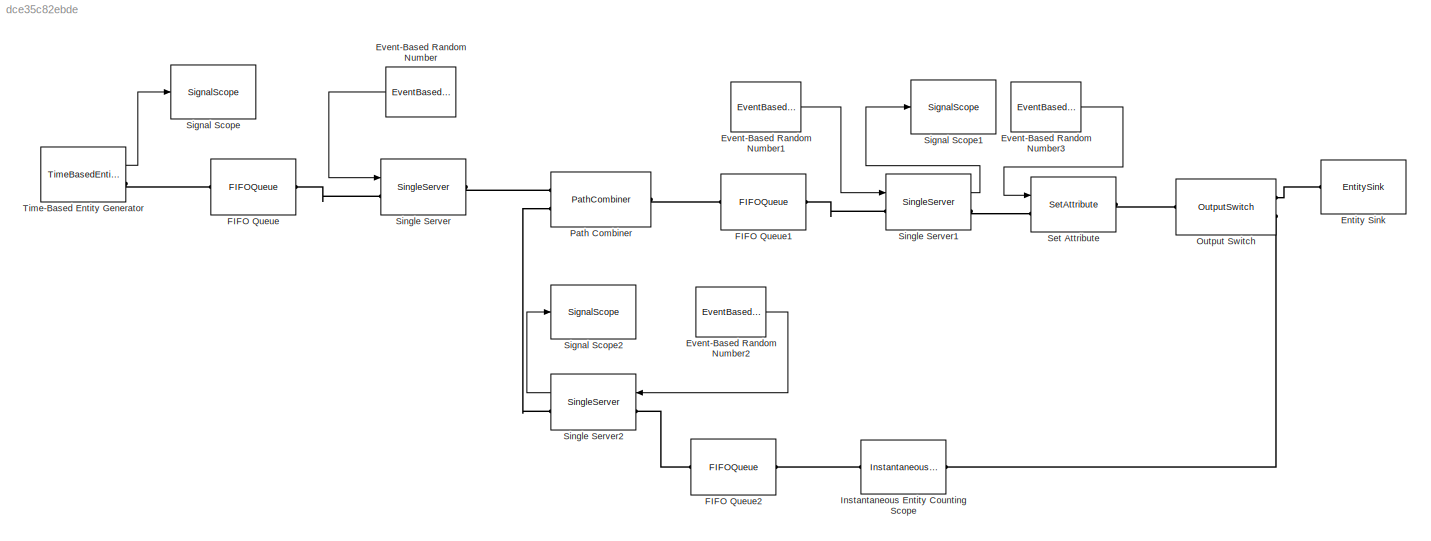
MODEL slx_dce35c82ebde
KIND model
BLOCK [EntitySink] Entity Sink
  Ports = [0, 0, 0, 0, 0, 1]
BLOCK [EventBasedRandomNumber] Event-Based Random Number
  Distribution = Uniform
  OutputPortMap = o0
  Ports = [0, 1]
  maxUnif = 80
  minUnif = 40
BLOCK [EventBasedRandomNumber] Event-Based Random Number1
  Distribution = Uniform
  OutputPortMap = o0
  Ports = [0, 1]
  maxUnif = 240
  minUnif = 120
BLOCK [EventBasedRandomNumber] Event-Based Random Number2
  Distribution = Uniform
  OutputPortMap = o0
  Ports = [0, 1]
  maxUnif = 170
  minUnif = 70
BLOCK [EventBasedRandomNumber] Event-Based Random Number3
  Distribution = Arbitrary discrete
  OutputPortMap = o0
  Ports = [0, 1]
  probVecDisc = [0.70 0.30]
  valueVecDisc = [1 2]
BLOCK [FIFOQueue] FIFO Queue
  Ports = [0, 0, 0, 0, 0, 1, 1]
BLOCK [FIFOQueue] FIFO Queue1
  Ports = [0, 0, 0, 0, 0, 1, 1]
BLOCK [FIFOQueue] FIFO Queue2
  Ports = [0, 0, 0, 0, 0, 1, 1]
BLOCK [InstantaneousEntityCountingScope] Instantaneous Entity Counting Scope
  CopyFcn = des.scope.CallbackSupport('seCopyFcn',gcbh)
  DeleteFcn = des.scope.CallbackSupport('seDeleteFcn',gcbh)
  LoadFcn = des.scope.CallbackSupport('seLoadFcn',gcbh)
  NameChangeFcn = des.scope.CallbackSupport('seNameChangeFcn',gcbh)
  OpenFcn = des.scope.CallbackSupport('seOpenFcn',gcbh)
  Ports = [0, 0, 0, 0, 0, 1, 1]
  PreSaveFcn = des.scope.CallbackSupport('sePreSaveFcn',gcbh)
  StartFcn = des.scope.CallbackSupport('seStartFcn',gcbh)
  StopFcn = des.scope.CallbackSupport('seStopFcn',gcbh)
BLOCK [OutputSwitch] Output Switch
  AttributeName = TestPassed
  NumberOutputPorts = 2
  Ports = [0, 0, 0, 0, 0, 1, 2]
  SwitchingCriterion = From attribute
BLOCK [PathCombiner] Path Combiner
  NumberInputPorts = 2
  Ports = [0, 0, 0, 0, 0, 2, 1]
BLOCK [SetAttribute] Set Attribute
  AttributeFrom = Dialog|Signal port
  AttributeName = Attribute1|TestPassed
  AttributeTreatAsVector = 1|1
  AttributeValue = 1|1
  EvaluatedAttributeValue = { 1;[]}
  InputPortMap = u1
  Ports = [1, 0, 0, 0, 0, 1, 1]
BLOCK [SignalScope] Signal Scope
  CopyFcn = des.scope.CallbackSupport('seCopyFcn',gcbh)
  DeleteFcn = des.scope.CallbackSupport('seDeleteFcn',gcbh)
  InputPortMap = u0
  LoadFcn = des.scope.CallbackSupport('seLoadFcn',gcbh)
  NameChangeFcn = des.scope.CallbackSupport('seNameChangeFcn',gcbh)
  OpenFcn = des.scope.CallbackSupport('seOpenFcn',gcbh)
  Ports = [1]
  PreSaveFcn = des.scope.CallbackSupport('sePreSaveFcn',gcbh)
  StartFcn = des.scope.CallbackSupport('seStartFcn',gcbh)
  StopFcn = des.scope.CallbackSupport('seStopFcn',gcbh)
BLOCK [SignalScope] Signal Scope1
  CopyFcn = des.scope.CallbackSupport('seCopyFcn',gcbh)
  DeleteFcn = des.scope.CallbackSupport('seDeleteFcn',gcbh)
  InputPortMap = u0
  LoadFcn = des.scope.CallbackSupport('seLoadFcn',gcbh)
  NameChangeFcn = des.scope.CallbackSupport('seNameChangeFcn',gcbh)
  OpenFcn = des.scope.CallbackSupport('seOpenFcn',gcbh)
  Ports = [1]
  PreSaveFcn = des.scope.CallbackSupport('sePreSaveFcn',gcbh)
  StartFcn = des.scope.CallbackSupport('seStartFcn',gcbh)
  StopFcn = des.scope.CallbackSupport('seStopFcn',gcbh)
BLOCK [SignalScope] Signal Scope2
  CopyFcn = des.scope.CallbackSupport('seCopyFcn',gcbh)
  DeleteFcn = des.scope.CallbackSupport('seDeleteFcn',gcbh)
  InputPortMap = u0
  LoadFcn = des.scope.CallbackSupport('seLoadFcn',gcbh)
  NameChangeFcn = des.scope.CallbackSupport('seNameChangeFcn',gcbh)
  OpenFcn = des.scope.CallbackSupport('seOpenFcn',gcbh)
  Ports = [1]
  PreSaveFcn = des.scope.CallbackSupport('sePreSaveFcn',gcbh)
  StartFcn = des.scope.CallbackSupport('seStartFcn',gcbh)
  StopFcn = des.scope.CallbackSupport('seStopFcn',gcbh)
BLOCK [SingleServer] Single Server
  InputPortMap = u0
  Ports = [1, 0, 0, 0, 0, 1, 1]
  ServiceTimeFrom = Signal port t
BLOCK [SingleServer] Single Server1
  InputPortMap = u0
  OutputPortMap = o0
  Ports = [1, 1, 0, 0, 0, 1, 1]
  ServiceTimeFrom = Signal port t
  StatNumberDeparted = on
BLOCK [SingleServer] Single Server2
  InputPortMap = u0
  OutputPortMap = o0
  Ports = [1, 1, 0, 0, 0, 1, 1]
  ServiceTimeFrom = Signal port t
  StatNumberDeparted = on
BLOCK [TimeBasedEntityGenerator] Time-Based Entity Generator
  Distribution = Uniform
  Maximum = 180
  Minimum = 60
  OutputPortMap = o0
  Period = 0.5
  Ports = [0, 1, 0, 0, 0, 0, 1]
  StatNumberDeparted = on
LINE Event-Based Random Number1:1 -> Single Server1:1
LINE Event-Based Random Number2:1 -> Single Server2:1
LINE Event-Based Random Number3:1 -> Set Attribute:1
LINE Event-Based Random Number:1 -> Single Server:1
LINE Single Server1:1 -> Signal Scope1:1
LINE Single Server2:1 -> Signal Scope2:1
LINE Time-Based Entity Generator:1 -> Signal Scope:1
PLINE Entity Sink:LConn1 -- Output Switch:RConn1
PLINE FIFO Queue1:LConn1 -- Path Combiner:RConn1
PLINE FIFO Queue1:RConn1 -- Single Server1:LConn1
PLINE FIFO Queue2:LConn1 -- Instantaneous Entity Counting Scope:RConn1
PLINE FIFO Queue2:RConn1 -- Single Server2:LConn1
PLINE FIFO Queue:LConn1 -- Time-Based Entity Generator:RConn1
PLINE FIFO Queue:RConn1 -- Single Server:LConn1
PLINE Instantaneous Entity Counting Scope:LConn1 -- Output Switch:RConn2
PLINE Output Switch:LConn1 -- Set Attribute:RConn1
PLINE Path Combiner:LConn1 -- Single Server:RConn1
PLINE Path Combiner:LConn2 -- Single Server2:RConn1
PLINE Set Attribute:LConn1 -- Single Server1:RConn1
